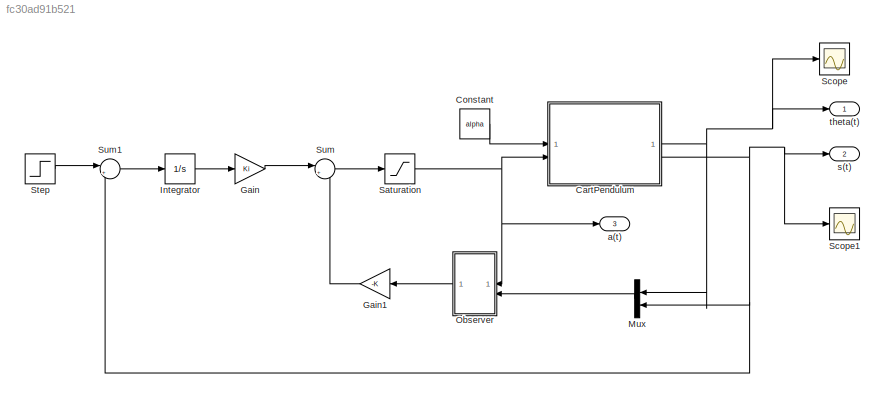
MODEL slx_fc30ad91b521
KIND model
CONFIG AbsTol = auto
CONFIG EnableMultiTasking = off
CONFIG FixedStep = auto
CONFIG MaxStep = auto
CONFIG MinStep = auto
CONFIG RelTol = 1e-3
CONFIG SampleTimeConstraint = Unconstrained
CONFIG SolverName = VariableStepAuto
CONFIG StartTime = 0.0
CONFIG StopTime = 10.0
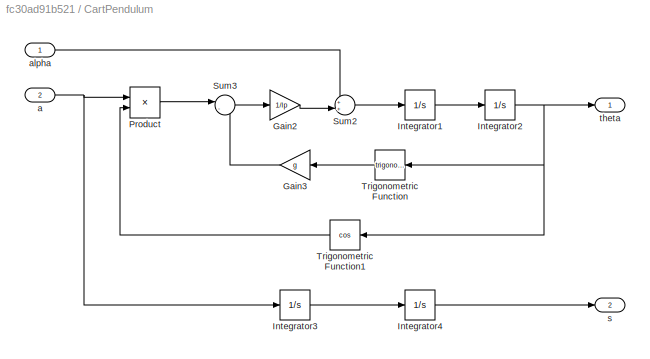
BLOCK [SubSystem] CartPendulum
BLOCK [Gain] CartPendulum/Gain2
  Gain = 1/lp
BLOCK [Gain] CartPendulum/Gain3
  Gain = g
BLOCK [Integrator] CartPendulum/Integrator1
BLOCK [Integrator] CartPendulum/Integrator2
BLOCK [Integrator] CartPendulum/Integrator3
BLOCK [Integrator] CartPendulum/Integrator4
BLOCK [Product] CartPendulum/Product
BLOCK [Sum] CartPendulum/Sum2
  Inputs = ++|
BLOCK [Sum] CartPendulum/Sum3
  Inputs = |-+
BLOCK [Trigonometry] CartPendulum/Trigonometric Function
BLOCK [Trigonometry] CartPendulum/Trigonometric Function1
  Operator = cos
BLOCK [Inport] CartPendulum/a
  Port = 2
BLOCK [Inport] CartPendulum/alpha
BLOCK [Outport] CartPendulum/s
  Port = 2
BLOCK [Outport] CartPendulum/theta
BLOCK [Constant] Constant
  Value = alpha
BLOCK [Gain] Gain
  Gain = Ki
  Multiplication = Matrix(K*u)
BLOCK [Gain] Gain1
  Gain = -K
  Multiplication = Matrix(K*u)
BLOCK [Integrator] Integrator
BLOCK [Mux] Mux
  DisplayOption = bar
  Inputs = 2
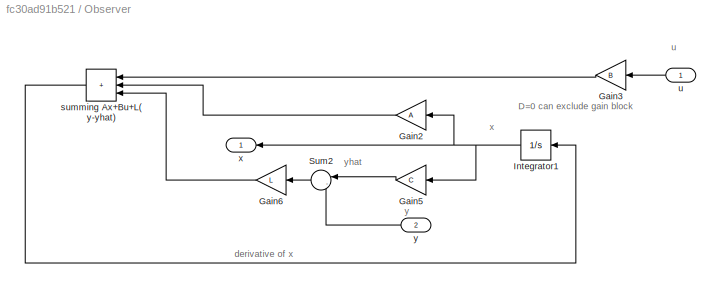
BLOCK [SubSystem] Observer
BLOCK [Gain] Observer/Gain2
  Gain = A
  Multiplication = Matrix(K*u)
BLOCK [Gain] Observer/Gain3
  Gain = B
  Multiplication = Matrix(K*u)
BLOCK [Gain] Observer/Gain5
  Gain = C
  Multiplication = Matrix(K*u)
BLOCK [Gain] Observer/Gain6
  Gain = L
  Multiplication = Matrix(K*u)
BLOCK [Integrator] Observer/Integrator1
BLOCK [Sum] Observer/Sum2
  Inputs = |-+
BLOCK [Sum] Observer/summing Ax+Bu+L(y-yhat)
  IconShape = rectangular
  Inputs = +++
  NameLocation = top
BLOCK [Inport] Observer/u
  IconDisplay = Signal name
BLOCK [Outport] Observer/x
BLOCK [Inport] Observer/y
  IconDisplay = Signal name
  Port = 2
BLOCK [Saturate] Saturation
BLOCK [Scope] Scope
  Floating = off
  NumInputPorts = 1
  ScopeSpecificationString = Simulink.scopes.TimeScopeBlockCfg('CurrentConfiguration', extmgr.ConfigurationSet(extmgr.Configuration('Core','General UI',true),extmgr.Configuration('Core','Source UI',true),extmgr.Configuration('Sources','WiredSimulink',true),extmgr.Configuration('Visuals','Time Domain',true),extmgr.Configuration('Tools','Plot Navigation',true),extmgr.Configuration('Tools','Measurements',true,'Version','2023b'))...<+74ch>
BLOCK [Scope] Scope1
  Floating = off
  NumInputPorts = 1
  ScopeSpecificationString = Simulink.scopes.TimeScopeBlockCfg('CurrentConfiguration', extmgr.ConfigurationSet(extmgr.Configuration('Core','General UI',true),extmgr.Configuration('Core','Source UI',true),extmgr.Configuration('Sources','WiredSimulink',true,'DataLoggingVariableName','ScopeData1'),extmgr.Configuration('Visuals','Time Domain',true),extmgr.Configuration('Tools','Plot Navigation',true),extmgr.Configuration('Tools',...<+40ch>
BLOCK [Step] Step
  SampleTime = 0
BLOCK [Sum] Sum
  Inputs = |++
BLOCK [Sum] Sum1
  Inputs = |+-
BLOCK [Outport] a(t)
  Port = 3
BLOCK [Outport] s(t)
  Port = 2
BLOCK [Outport] theta(t)
ANNOTATION Observer: D=0 can exclude gain block
ANNOTATION Observer: derivative of x
ANNOTATION Observer: u
ANNOTATION Observer: x
ANNOTATION Observer: y
ANNOTATION Observer: yhat
LINE CartPendulum/Gain2:1 -> CartPendulum/Sum2:2
LINE CartPendulum/Gain3:1 -> CartPendulum/Sum3:2
LINE CartPendulum/Integrator1:1 -> CartPendulum/Integrator2:1
NET CartPendulum/Integrator2:1 -> CartPendulum/Trigonometric Function1:1, CartPendulum/Trigonometric Function:1, CartPendulum/theta:1
LINE CartPendulum/Integrator3:1 -> CartPendulum/Integrator4:1
LINE CartPendulum/Integrator4:1 -> CartPendulum/s:1
LINE CartPendulum/Product:1 -> CartPendulum/Sum3:1
LINE CartPendulum/Sum2:1 -> CartPendulum/Integrator1:1
LINE CartPendulum/Sum3:1 -> CartPendulum/Gain2:1
LINE CartPendulum/Trigonometric Function1:1 -> CartPendulum/Product:2
LINE CartPendulum/Trigonometric Function:1 -> CartPendulum/Gain3:1
NET CartPendulum/a:1 -> CartPendulum/Integrator3:1, CartPendulum/Product:1
LINE CartPendulum/alpha:1 -> CartPendulum/Sum2:1
NET CartPendulum:1 -> Mux:1, Scope:1, theta(t):1
NET CartPendulum:2 -> Mux:2, Scope1:1, Sum1:2, s(t):1
LINE Constant:1 -> CartPendulum:1
LINE Gain1:1 -> Sum:2
LINE Gain:1 -> Sum:1
LINE Integrator:1 -> Gain:1
LINE Mux:1 -> Observer:2
LINE Observer/Gain2:1 -> Observer/summing Ax+Bu+L(y-yhat):2
LINE Observer/Gain3:1 -> Observer/summing Ax+Bu+L(y-yhat):1
LINE Observer/Gain5:1 -> Observer/Sum2:1
LINE Observer/Gain6:1 -> Observer/summing Ax+Bu+L(y-yhat):3
NET Observer/Integrator1:1 -> Observer/Gain2:1, Observer/Gain5:1, Observer/x:1
LINE Observer/Sum2:1 -> Observer/Gain6:1
LINE Observer/summing Ax+Bu+L(y-yhat):1 -> Observer/Integrator1:1
LINE Observer/u:1 -> Observer/Gain3:1
LINE Observer/y:1 -> Observer/Sum2:2
LINE Observer:1 -> Gain1:1
NET Saturation:1 -> CartPendulum:2, Observer:1, a(t):1
LINE Step:1 -> Sum1:1
LINE Sum1:1 -> Integrator:1
LINE Sum:1 -> Saturation:1
note: NET lines group one-source signal fan-out (src -> all destinations, sorted); 1:1 wires keep LINE
